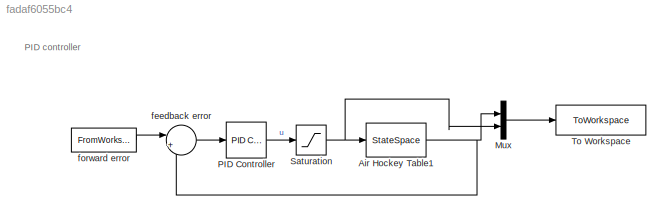
MODEL slx_fadaf6055bc4
KIND model
CONFIG AbsTol = auto
CONFIG EnableMultiTasking = off
CONFIG FixedStep = auto
CONFIG MaxStep = auto
CONFIG MinStep = auto
CONFIG RelTol = 1e-3
CONFIG SampleTimeConstraint = Unconstrained
CONFIG SolverName = VariableStepAuto
CONFIG StartTime = 0.0
CONFIG StopTime = max(data.Time_ms_)/1000
BLOCK [StateSpace] Air Hockey Table1
  A = A
  B = B
  C = C
  D = D
  InitialCondition = [0;0;0]
BLOCK [Mux] Mux
  DisplayOption = bar
  Inputs = 2
BLOCK [Reference] PID Controller  REF=slpidlib/PID Controller
  LibrarySourceBlock = simulink/Continuous/PID Controller
  SourceBlock = slpidlib/PID Controller
  SourceType = PID 1dof
BLOCK [Saturate] Saturation
  LowerLimit = -12
  UpperLimit = 12
BLOCK [ToWorkspace] To Workspace
  FixptAsFi = on
  MaxDataPoints = inf
  SampleTime = -1
  SaveFormat = Timeseries
  VariableName = simout
BLOCK [Sum] feedback error
  Inputs = |+-
BLOCK [FromWorkspace] forward error
  VariableName = [data.Time_ms_/1000, data.y_error]
ANNOTATION (root): PID controller
NET Air Hockey Table1:1 -> Mux:1, feedback error:2
LINE Mux:1 -> To Workspace:1
LINE PID Controller:1 -> Saturation:1
NET Saturation:1 -> Air Hockey Table1:1, Mux:2
LINE feedback error:1 -> PID Controller:1
LINE forward error:1 -> feedback error:1
note: NET lines group one-source signal fan-out (src -> all destinations, sorted); 1:1 wires keep LINE
